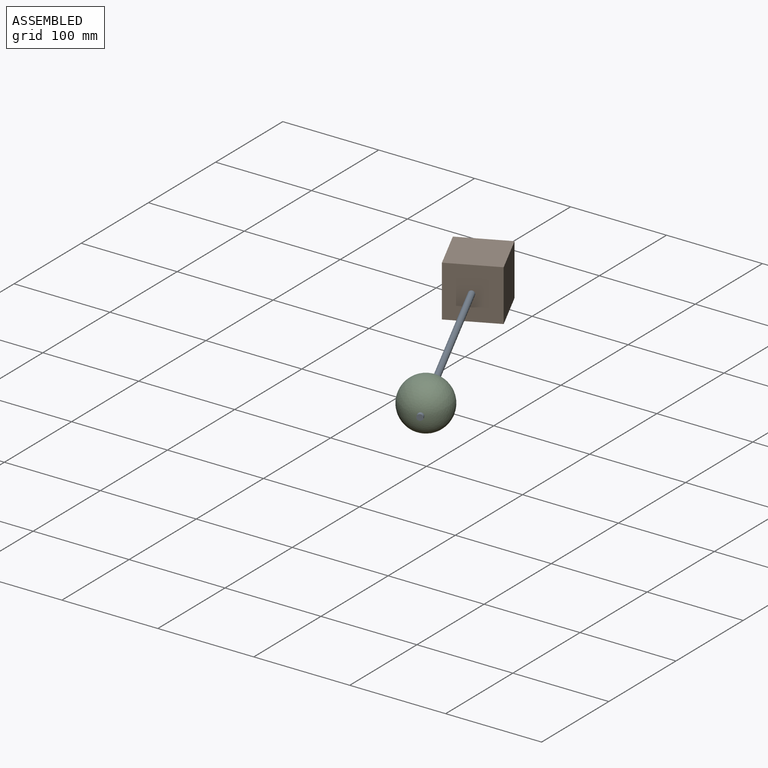
[diagram: assembled view]
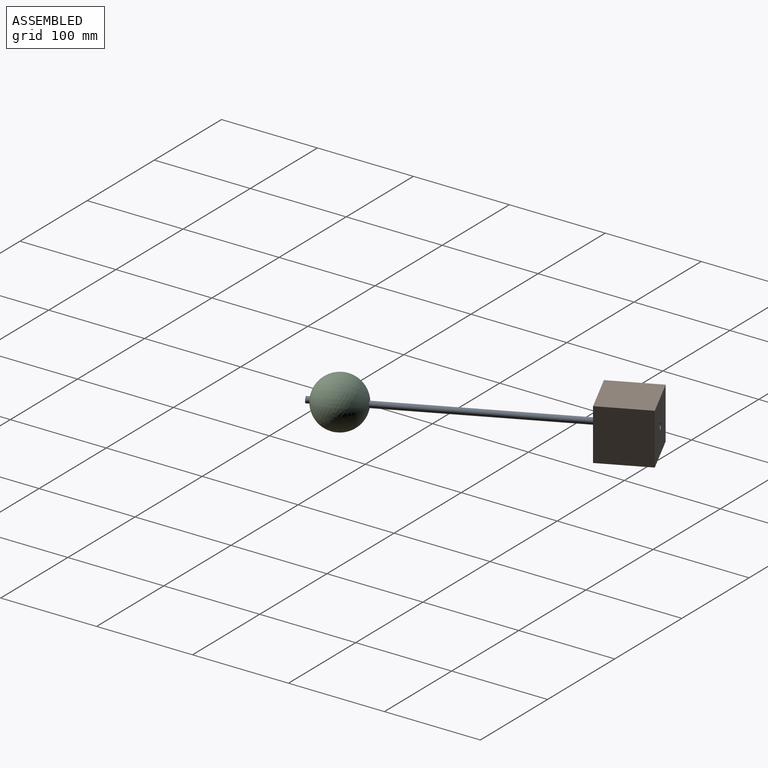
[diagram: assembled view, second angle]
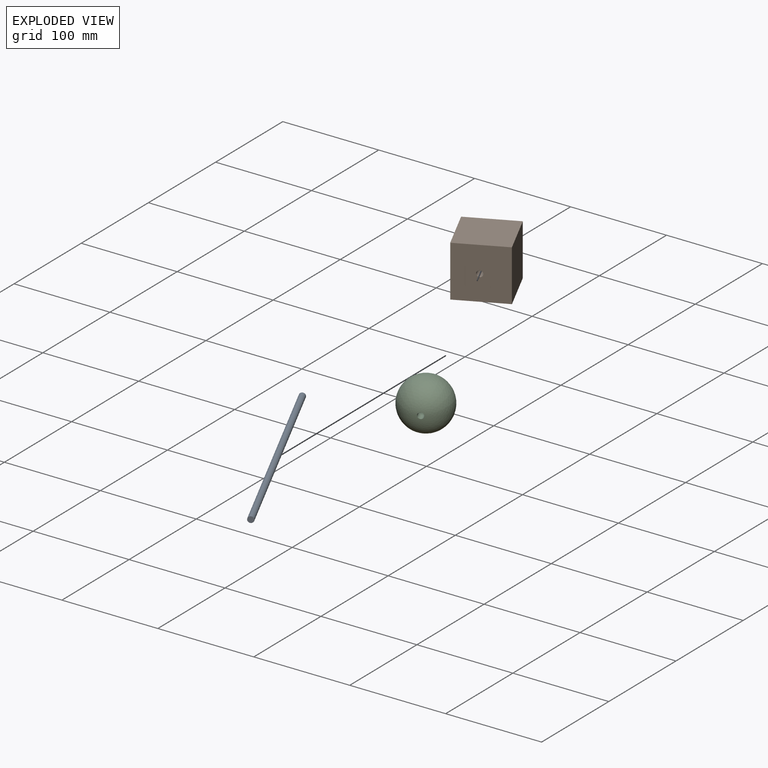
[diagram: exploded view]
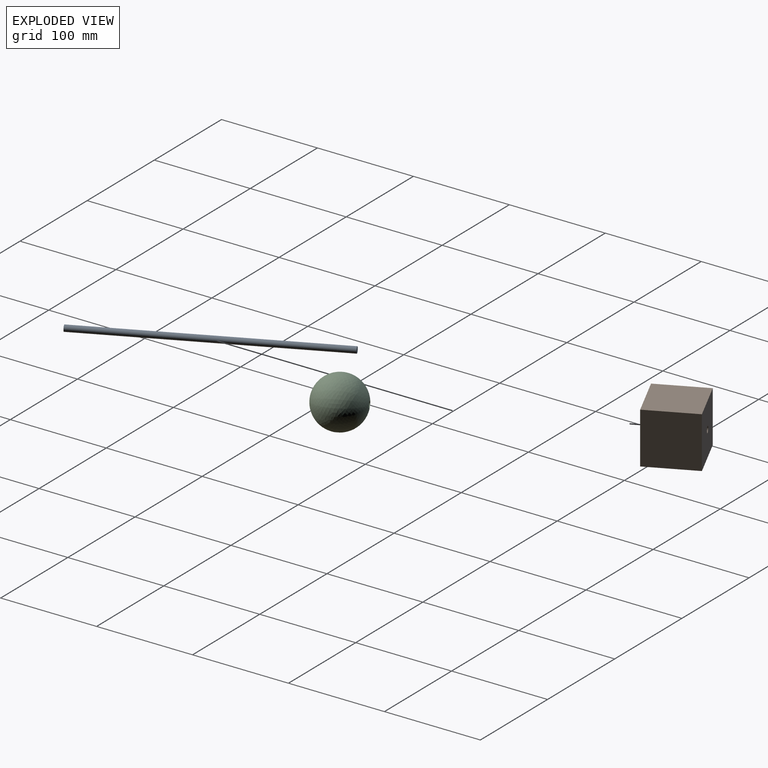
[diagram: exploded view, second angle]
ASSEMBLY  parts=3 mates=3
PART A: 3 faces, bbox 6.4x254x6.4 mm
  f0: cylinder r=3.17mm len=254mm, axis (0,1,0), area 5067.1mm2, adj f1,f2
  f1: plane 6.35x6.35mm, normal (0,-1,0), area 31.7mm2, adj f0
  f2: plane 6.35x6.35mm, normal (0,1,0), area 31.7mm2, adj f0
PART B: 7 faces, bbox 53.5x53.5x53.5 mm
  f0: plane 53.54x53.52mm, normal (0,0,1), area 2865.3mm2, adj f1,f3,f4,f5
  f1: plane 53.52x53.51mm, normal (-1,0,0), area 2832mm2, adj f0,f2,f4,f5,f6
  f2: plane 53.54x53.52mm, normal (0,0,-1), area 2865.3mm2, adj f1,f3,f4,f5
  f3: plane 53.52x53.51mm, normal (1,0,0), area 2832mm2, adj f0,f2,f4,f5,f6
  f4: plane 53.54x53.51mm, normal (0,-1,0), area 2864.8mm2, adj f0,f1,f2,f3
  f5: plane 53.54x53.51mm, normal (0,1,0), area 2864.8mm2, adj f0,f1,f2,f3
  f6: cylinder r=3.17mm len=53.54mm, axis (1,0,0), area 1068.1mm2, adj f1,f3
PART C: 2 faces, bbox 52x52x51.7 mm
  f0: revolved ~51.99x51.99mm, area 8430.9mm2, adj f1
  f1: cylinder r=3.17mm len=51.65mm, axis (0,0,-1), area 1030.4mm2, adj f0
PLACE A rot(axis=(0,0,1),25deg) t=(-129.82,52.39,109.8)mm
PLACE B rot(axis=(0,0,-1),65deg) t=(-101.21,56.94,83.47)mm
PLACE C rot(axis=(0.64,-0.41,0.64),135.3deg) t=(-45.96,-127.45,109.8)mm
MATE planar A.f0 <-> B.f3  axis (-0.42,0.91,0) through (-129.82,52.39,109.8)mm
MATE cylindrical C.f1 <-> A.f0  axis (-0.42,0.91,0) through (-34.97,-151.04,109.8)mm
MATE cylindrical A.f0 <-> B.f6  axis (-0.42,0.91,0) through (-76.15,-62.71,109.8)mm
